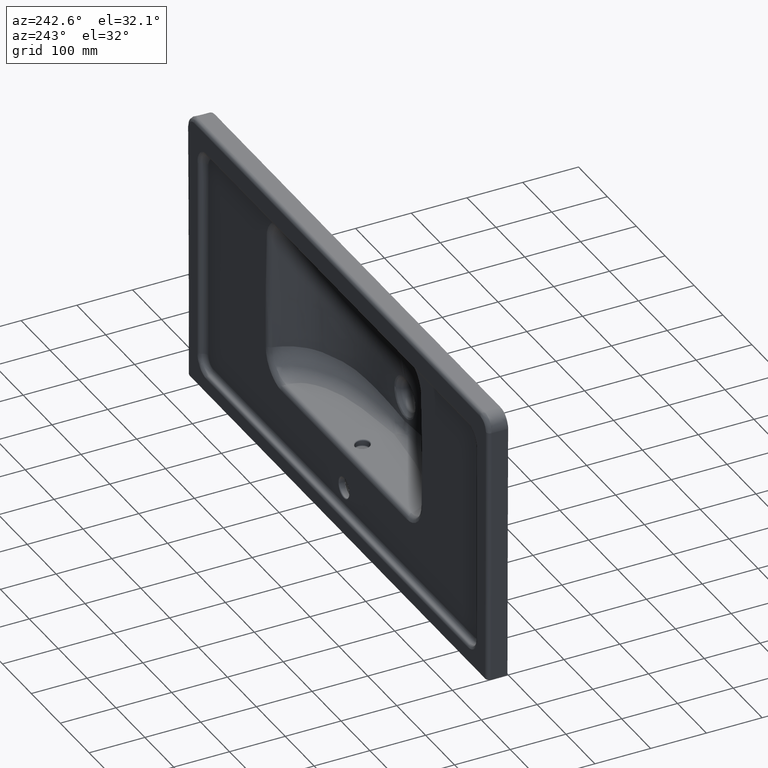
[diagram: clean part render]
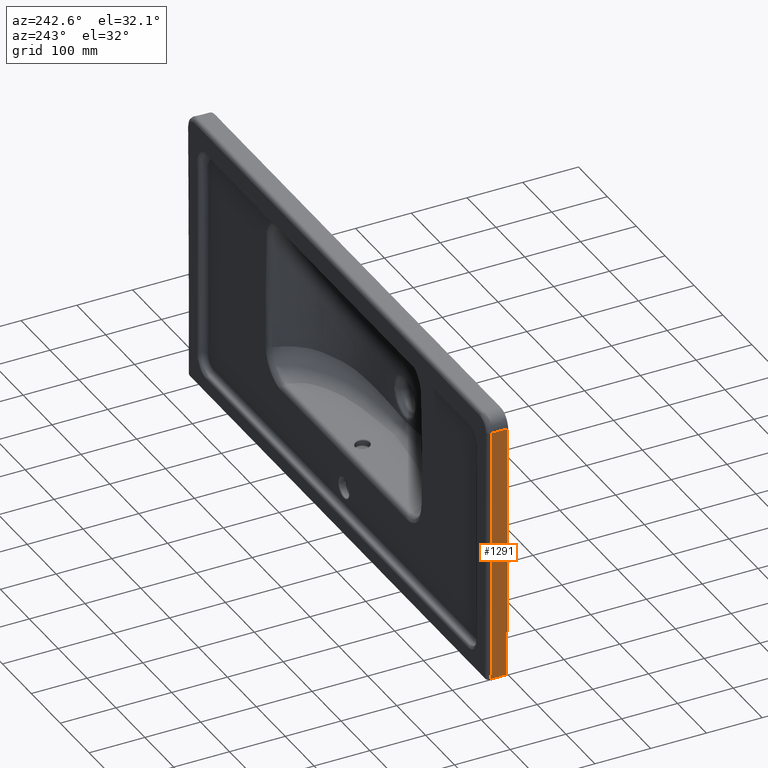
[diagram: same view with one face highlighted and labeled with its STEP entity id]
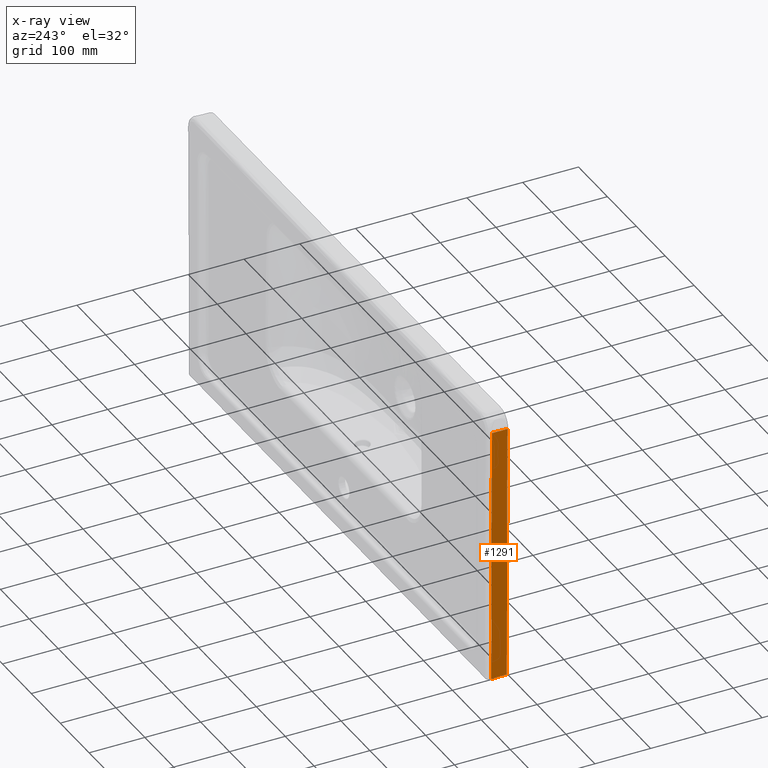
[diagram: x-ray of the same camera — body ghosted, the highlighted face saturated]
A machine part, auxiliary view. The second image highlights one B-rep face of the part: STEP entity #1291.
The next image is the same camera in x-ray: the body ghosted, the highlighted face saturated — about 0% of this face is hidden behind the body in this view.
In plain terms, the highlighted face is a freeform B-spline surface patch.
Its self-contained STEP definition (entity closure, byte-faithful):
#151=B_SPLINE_SURFACE_WITH_KNOTS('',3,3,((#38576,#38577,#38578,#38579),
(#38580,#38581,#38582,#38583),(#38584,#38585,#38586,#38587),(#38588,#38589,
#38590,#38591),(#38592,#38593,#38594,#38595),(#38596,#38597,#38598,#38599),
(#38600,#38601,#38602,#38603),(#38604,#38605,#38606,#38607)),
 .UNSPECIFIED.,.F.,.F.,.F.,(4,1,1,1,1,4),(4,4),(0.,0.283719789803645,0.715122315136546,
0.792197356752215,0.856743957960729,1.),(0.,1.),.UNSPECIFIED.);
#1291=ADVANCED_FACE('',(#1884),#151,.T.);
#1884=FACE_OUTER_BOUND('',#2476,.T.);
#2476=EDGE_LOOP('',(#5092,#5093,#5094,#5095,#5096));
#3234=B_SPLINE_CURVE_WITH_KNOTS('',3,(#37066,#37067,#37068,#37069),
 .UNSPECIFIED.,.F.,.F.,(4,4),(0.,1.),.UNSPECIFIED.);
#3295=B_SPLINE_CURVE_WITH_KNOTS('',3,(#38482,#38483,#38484,#38485),
 .UNSPECIFIED.,.F.,.F.,(4,4),(0.,1.),.UNSPECIFIED.);
#3296=B_SPLINE_CURVE_WITH_KNOTS('',3,(#38536,#38537,#38538,#38539,#38540,
#38541,#38542,#38543,#38544,#38545,#38546,#38547,#38548),.UNSPECIFIED.,
 .F.,.F.,(4,3,3,3,4),(0.,0.0258810312696968,0.146659453226402,0.629773141053221,
1.),.UNSPECIFIED.);
#3297=B_SPLINE_CURVE_WITH_KNOTS('',3,(#38550,#38551,#38552,#38553,#38554,
#38555,#38556,#38557,#38558,#38559),.UNSPECIFIED.,.F.,.F.,(4,3,3,4),(0.,
0.176045847710431,0.880229238552155,1.),.UNSPECIFIED.);
#3298=B_SPLINE_CURVE_WITH_KNOTS('',3,(#38560,#38561,#38562,#38563,#38564,
#38565,#38566,#38567,#38568,#38569,#38570,#38571,#38572,#38573,#38574,#38575),
 .UNSPECIFIED.,.F.,.F.,(4,3,3,3,3,4),(0.,0.00326003352500787,0.0378205151280391,
0.176062441545396,0.729030147568416,1.),.UNSPECIFIED.);
#5092=ORIENTED_EDGE('',*,*,#7922,.T.);
#5093=ORIENTED_EDGE('',*,*,#7923,.T.);
#5094=ORIENTED_EDGE('',*,*,#7919,.T.);
#5095=ORIENTED_EDGE('',*,*,#7924,.T.);
#5096=ORIENTED_EDGE('',*,*,#7840,.T.);
#6818=VERTEX_POINT('',#36569);
#6832=VERTEX_POINT('',#37065);
#6862=VERTEX_POINT('',#38429);
#6863=VERTEX_POINT('',#38481);
#6864=VERTEX_POINT('',#38549);
#7840=EDGE_CURVE('',#6818,#6832,#3234,.T.);
#7919=EDGE_CURVE('',#6862,#6863,#3295,.T.);
#7922=EDGE_CURVE('',#6832,#6864,#3296,.T.);
#7923=EDGE_CURVE('',#6864,#6862,#3297,.T.);
#7924=EDGE_CURVE('',#6863,#6818,#3298,.T.);
#36569=CARTESIAN_POINT('',(-524.580714043312,-52.6797875938802,227.074071857938));
#37065=CARTESIAN_POINT('',(-525.229058999233,-24.2847510193876,227.773937590122));
#37066=CARTESIAN_POINT('',(-524.580714043312,-52.6797875938802,227.074071857938));
#37067=CARTESIAN_POINT('',(-524.796829053677,-43.2147755388388,227.30736594856));
#37068=CARTESIAN_POINT('',(-525.012944038987,-33.7497633473302,227.540654525503));
#37069=CARTESIAN_POINT('',(-525.229058999233,-24.2847510193877,227.773937590122));
#38429=CARTESIAN_POINT('',(-522.156259774525,-52.6791261981314,-235.878684925738));
#38481=CARTESIAN_POINT('',(-522.156273355118,-52.6791263226664,-235.876091163036));
#38482=CARTESIAN_POINT('',(-522.156259774525,-52.6791261981314,-235.878684925738));
#38483=CARTESIAN_POINT('',(-522.15626430139,-52.6791262396433,-235.87782033817));
#38484=CARTESIAN_POINT('',(-522.156268828254,-52.6791262811549,-235.876955750603));
#38485=CARTESIAN_POINT('',(-522.156273355118,-52.6791263226664,-235.876091163036));
#38536=CARTESIAN_POINT('',(-525.229058999233,-24.2847510193876,227.773937590122));
#38537=CARTESIAN_POINT('',(-525.208111463039,-24.2847510239169,223.77400158228));
#38538=CARTESIAN_POINT('',(-525.187163926919,-24.284751027562,219.774065574438));
#38539=CARTESIAN_POINT('',(-525.166216390871,-24.284751030397,215.774129566595));
#38540=CARTESIAN_POINT('',(-525.068460999234,-24.2847510436268,197.107718869092));
#38541=CARTESIAN_POINT('',(-524.970705609179,-24.2847510392036,178.441308171581));
#38542=CARTESIAN_POINT('',(-524.872950220341,-24.2847510261689,159.774897474063));
#38543=CARTESIAN_POINT('',(-524.481928664991,-24.2847509740302,85.1092546839929));
#38544=CARTESIAN_POINT('',(-524.090907127547,-24.2847508550455,10.4436118938289));
#38545=CARTESIAN_POINT('',(-523.699885590248,-24.2847509945776,-64.2220308963359));
#38546=CARTESIAN_POINT('',(-523.40023215632,-24.2847511015059,-121.440915597765));
#38547=CARTESIAN_POINT('',(-523.100579496969,-24.2847516603427,-178.65980030325));
#38548=CARTESIAN_POINT('',(-522.800925059168,-24.2847511737522,-235.878684999422));
#38549=CARTESIAN_POINT('',(-522.800925059168,-24.2847511737522,-235.878684999422));
#38550=CARTESIAN_POINT('',(-522.800925059168,-24.2847511737522,-235.878684999422));
#38551=CARTESIAN_POINT('',(-522.763094844396,-25.9509884475605,-235.878684994895));
#38552=CARTESIAN_POINT('',(-522.725264629489,-27.6172257213657,-235.878684990412));
#38553=CARTESIAN_POINT('',(-522.687434414449,-29.283462995168,-235.87868498597));
#38554=CARTESIAN_POINT('',(-522.536113554291,-35.9484120903768,-235.878684968204));
#38555=CARTESIAN_POINT('',(-522.384792692022,-42.6133611855377,-235.878684951103));
#38556=CARTESIAN_POINT('',(-522.233471827818,-49.2783102806548,-235.878684934589));
#38557=CARTESIAN_POINT('',(-522.207734476775,-50.4119155864816,-235.878684931781));
#38558=CARTESIAN_POINT('',(-522.181997125679,-51.5455208923072,-235.878684928513));
#38559=CARTESIAN_POINT('',(-522.156259774525,-52.6791261981314,-235.878684925738));
#38560=CARTESIAN_POINT('',(-522.156273355118,-52.6791263226664,-235.876091163036));
#38561=CARTESIAN_POINT('',(-522.158907402353,-52.6791504769612,-235.373013476582));
#38562=CARTESIAN_POINT('',(-522.161541451216,-52.6791745687408,-234.869935790133));
#38563=CARTESIAN_POINT('',(-522.164175501716,-52.679198597386,-234.36685810369));
#38564=CARTESIAN_POINT('',(-522.192099770946,-52.6794533314385,-229.033597879888));
#38565=CARTESIAN_POINT('',(-522.22002422429,-52.6797009631969,-223.700337656704));
#38566=CARTESIAN_POINT('',(-522.247948868482,-52.6799407976583,-218.367077434174));
#38567=CARTESIAN_POINT('',(-522.359647445253,-52.680900135504,-197.034036543648));
#38568=CARTESIAN_POINT('',(-522.471349111014,-52.6817291969356,-175.700995662959));
#38569=CARTESIAN_POINT('',(-522.583053974165,-52.6824151846334,-154.367954794808));
#38570=CARTESIAN_POINT('',(-523.029873426909,-52.6851591354255,-69.0357912948674));
#38571=CARTESIAN_POINT('',(-523.476743199386,-52.6856858063043,16.296372042352));
#38572=CARTESIAN_POINT('',(-523.923664189269,-52.6839705278302,101.628535037437));
#38573=CARTESIAN_POINT('',(-524.142668144453,-52.6831299927501,143.443714058725));
#38574=CARTESIAN_POINT('',(-524.361687207294,-52.6816274195721,185.25889298852));
#38575=CARTESIAN_POINT('',(-524.580714043312,-52.6797875938801,227.074071857938));
#38576=CARTESIAN_POINT('',(-527.72528316305,33.5108889968129,453.86645075421));
#38577=CARTESIAN_POINT('',(-526.033797655927,-38.8621515126433,444.63646410277));
#38578=CARTESIAN_POINT('',(-524.342312148877,-111.235192022103,435.406477451414));
#38579=CARTESIAN_POINT('',(-522.650826641813,-183.608232531564,426.176490800048));
#38580=CARTESIAN_POINT('',(-527.305979406817,33.2696711849352,374.845650719096));
#38581=CARTESIAN_POINT('',(-525.637429637493,-38.795552446522,368.661301338132));
#38582=CARTESIAN_POINT('',(-523.968879868223,-110.860776077982,362.476951957228));
#38583=CARTESIAN_POINT('',(-522.300330098943,-182.925999709443,356.292602576313));
#38584=CARTESIAN_POINT('',(-526.255247639781,32.6616756423528,176.843210447129));
#38585=CARTESIAN_POINT('',(-524.636738826928,-38.6276883963206,176.851684708592));
#38586=CARTESIAN_POINT('',(-523.018230014083,-109.917052434996,176.860158970053));
#38587=CARTESIAN_POINT('',(-521.399721201233,-181.206416473671,176.868633231516));
#38588=CARTESIAN_POINT('',(-525.119626137623,31.9881489784942,-37.0839876207904));
#38589=CARTESIAN_POINT('',(-523.520630438719,-38.4417341984458,-37.0756151086762));
#38590=CARTESIAN_POINT('',(-521.921634739811,-108.871617375384,-37.0672425965612));
#38591=CARTESIAN_POINT('',(-520.322639040899,-179.301500552322,-37.0588700844465));
#38592=CARTESIAN_POINT('',(-524.2981912304,31.5009632314255,-191.825042384891));
#38593=CARTESIAN_POINT('',(-522.713310050799,-38.3072272553705,-191.81674371774));
#38594=CARTESIAN_POINT('',(-521.128428871156,-108.115417742167,-191.808445050602));
#38595=CARTESIAN_POINT('',(-519.543547691525,-177.923608228962,-191.800146383463));
#38596=CARTESIAN_POINT('',(-523.889816702027,31.2587599097037,-268.75421200001));
#38597=CARTESIAN_POINT('',(-522.311952524033,-38.2403574452684,-268.745950064185));
#38598=CARTESIAN_POINT('',(-520.734088346016,-107.739474800238,-268.737688128389));
#38599=CARTESIAN_POINT('',(-519.156224167999,-177.238592155209,-268.729426192587));
#38600=CARTESIAN_POINT('',(-523.71611662347,31.0820859342637,-301.15211787587));
#38601=CARTESIAN_POINT('',(-522.024254777325,-38.1915795842839,-323.893190768382));
#38602=CARTESIAN_POINT('',(-520.332392931188,-107.465245102827,-346.634263660918));
#38603=CARTESIAN_POINT('',(-518.640531085046,-176.738910621372,-369.375336553453));
#38604=CARTESIAN_POINT('',(-523.64063535761,30.9602895531197,-315.032840180045));
#38605=CARTESIAN_POINT('',(-521.827727584368,-38.1579528536172,-361.565702126081));
#38606=CARTESIAN_POINT('',(-520.014819811165,-107.276195260349,-408.098564072133));
#38607=CARTESIAN_POINT('',(-518.201912037948,-176.394437667082,-454.631426018183));